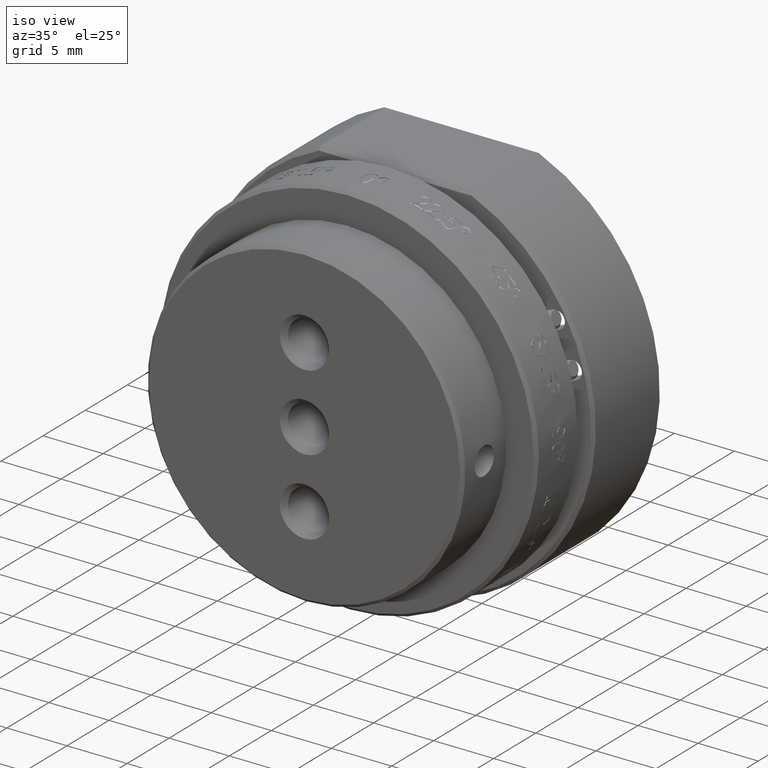
[diagram: clean part render]
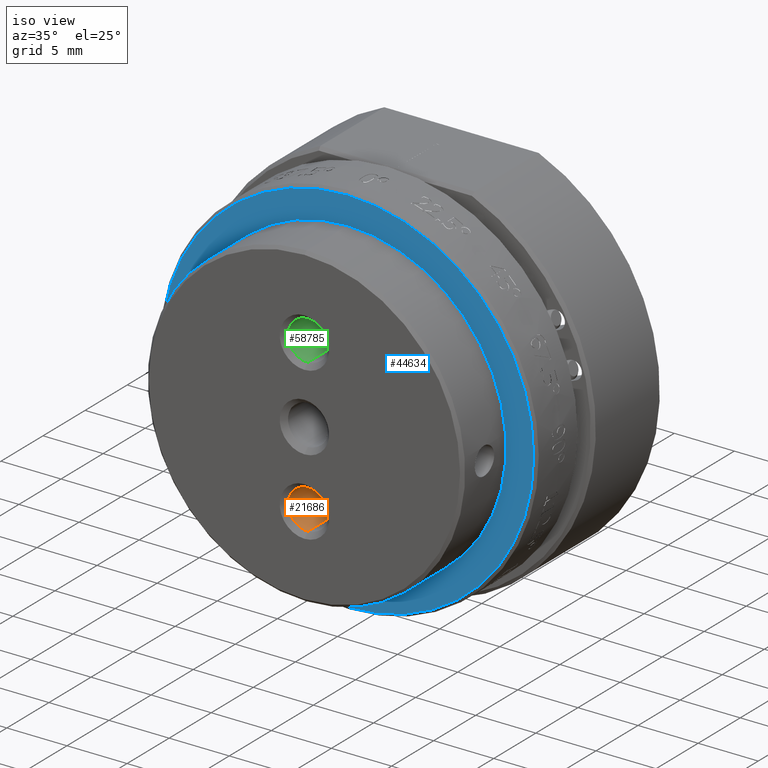
[diagram: same view with three faces highlighted in distinct colors, each labeled with its STEP entity id]
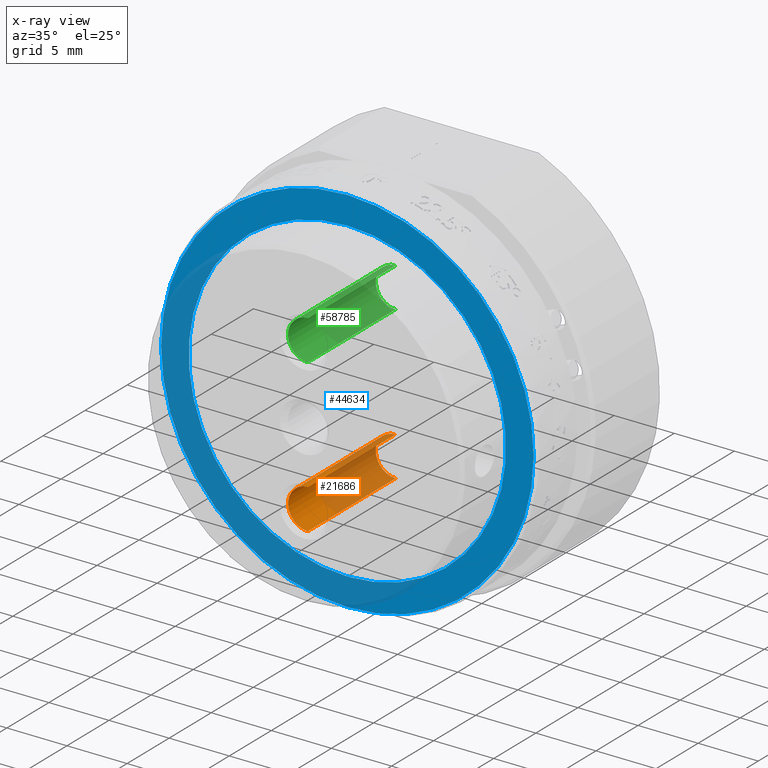
[diagram: x-ray of the same camera — body ghosted, the three highlighted faces saturated]
A machine part, iso view with three faces highlighted in distinct colors.
The next image is the same camera in x-ray (body ghosted, the three faces saturated) — at least one of them is partly hidden behind the body in this view.
Their STEP definitions:

[orange] entity #21686 — the highlighted cylindrical surface (edge-blend (fillet) strip) has radius 1.65 mm, axis along (-0, -1, -0).
#2853 = FACE_OUTER_BOUND ( 'NONE', #20907, .T. ) ;
#7263 = ORIENTED_EDGE ( 'NONE', *, *, #25511, .F. ) ;
#9129 = DIRECTION ( 'NONE',  ( 0.000000000000000000, 0.000000000000000000, -1.000000000000000000 ) ) ;
#13727 = CARTESIAN_POINT ( 'NONE',  ( -1.040834085586084257E-13, -18.51973527255162466, -8.000000000000133227 ) ) ;
#14503 = VERTEX_POINT ( 'NONE', #13727 ) ;
#16191 = VERTEX_POINT ( 'NONE', #44357 ) ;
#18759 = AXIS2_PLACEMENT_3D ( 'NONE', #25347, #53001, #9129 ) ;
#20906 = EDGE_CURVE ( 'NONE', #16191, #14503, #70556, .T. ) ;
#20907 = EDGE_LOOP ( 'NONE', ( #50894, #26636, #47929, #7263 ) ) ;
#21686 = ADVANCED_FACE ( 'NONE', ( #2853 ), #65519, .F. ) ;
#22680 = DIRECTION ( 'NONE',  ( -0.000000000000000000, -1.000000000000000000, -0.000000000000000000 ) ) ;
#23034 = LINE ( 'NONE', #56571, #58382 ) ;
#23981 = CIRCLE ( 'NONE', #66390, 1.649999999999997025 ) ;
#25347 = CARTESIAN_POINT ( 'NONE',  ( -1.040834085586084257E-13, -18.89473527255162466, -6.350000000000145306 ) ) ;
#25511 = EDGE_CURVE ( 'NONE', #35739, #14503, #61136, .T. ) ;
#26636 = ORIENTED_EDGE ( 'NONE', *, *, #43115, .T. ) ;
#27577 = CARTESIAN_POINT ( 'NONE',  ( -1.040834085586084257E-13, -18.51973527255162466, -6.350000000000145306 ) ) ;
#31902 = VECTOR ( 'NONE', #32070, 1000.000000000000000 ) ;
#32070 = DIRECTION ( 'NONE',  ( -0.000000000000000000, -1.000000000000000000, -0.000000000000000000 ) ) ;
#35739 = VERTEX_POINT ( 'NONE', #39692 ) ;
#36712 = EDGE_CURVE ( 'NONE', #56849, #35739, #23981, .T. ) ;
#37469 = DIRECTION ( 'NONE',  ( -0.000000000000000000, -1.000000000000000000, -0.000000000000000000 ) ) ;
#38559 = CARTESIAN_POINT ( 'NONE',  ( -1.040834085586084257E-13, -8.096735272551628171, -6.350000000000145306 ) ) ;
#39692 = CARTESIAN_POINT ( 'NONE',  ( -1.040834085586084257E-13, -8.096735272551628171, -8.000000000000142109 ) ) ;
#43115 = EDGE_CURVE ( 'NONE', #56849, #16191, #23034, .T. ) ;
#44357 = CARTESIAN_POINT ( 'NONE',  ( -1.038813418367491165E-13, -18.51973527255162466, -4.700000000000157385 ) ) ;
#45319 = DIRECTION ( 'NONE',  ( 0.000000000000000000, 0.000000000000000000, -1.000000000000000000 ) ) ;
#47929 = ORIENTED_EDGE ( 'NONE', *, *, #20906, .T. ) ;
#50430 = CARTESIAN_POINT ( 'NONE',  ( -1.038813418367491165E-13, -8.096735272551628171, -4.700000000000148503 ) ) ;
#50894 = ORIENTED_EDGE ( 'NONE', *, *, #36712, .F. ) ;
#53001 = DIRECTION ( 'NONE',  ( -0.000000000000000000, -1.000000000000000000, -0.000000000000000000 ) ) ;
#56571 = CARTESIAN_POINT ( 'NONE',  ( -1.038813418367491165E-13, -18.89473527255162466, -4.700000000000152944 ) ) ;
#56849 = VERTEX_POINT ( 'NONE', #50430 ) ;
#58382 = VECTOR ( 'NONE', #22680, 1000.000000000000000 ) ;
#60974 = DIRECTION ( 'NONE',  ( 0.000000000000000000, 0.000000000000000000, -1.000000000000000000 ) ) ;
#61123 = AXIS2_PLACEMENT_3D ( 'NONE', #27577, #67004, #45319 ) ;
#61136 = LINE ( 'NONE', #65945, #31902 ) ;
#65519 = CYLINDRICAL_SURFACE ( 'NONE', #18759, 1.649999999999993472 ) ;
#65945 = CARTESIAN_POINT ( 'NONE',  ( -1.040834085586084257E-13, -18.89473527255162466, -8.000000000000138556 ) ) ;
#66390 = AXIS2_PLACEMENT_3D ( 'NONE', #38559, #37469, #60974 ) ;
#67004 = DIRECTION ( 'NONE',  ( -0.000000000000000000, -1.000000000000000000, -0.000000000000000000 ) ) ;
#70556 = CIRCLE ( 'NONE', #61123, 1.649999999999988365 ) ;

[blue] entity #44634 — the highlighted planar face has unit normal (0, -1, 0).
#911 = ORIENTED_EDGE ( 'NONE', *, *, #26430, .T. ) ;
#1945 = DIRECTION ( 'NONE',  ( 0.000000000000000000, -1.000000000000000000, 0.000000000000000000 ) ) ;
#2774 = EDGE_LOOP ( 'NONE', ( #911, #47313 ) ) ;
#3295 = CIRCLE ( 'NONE', #31595, 15.49799999999999400 ) ;
#4431 = DIRECTION ( 'NONE',  ( 0.000000000000000000, 0.000000000000000000, -1.000000000000000000 ) ) ;
#5275 = EDGE_CURVE ( 'NONE', #69198, #10222, #43167, .T. ) ;
#6789 = VERTEX_POINT ( 'NONE', #44987 ) ;
#7461 = DIRECTION ( 'NONE',  ( 0.000000000000000000, 0.000000000000000000, -1.000000000000000000 ) ) ;
#7760 = EDGE_CURVE ( 'NONE', #10222, #69198, #52539, .T. ) ;
#8732 = CARTESIAN_POINT ( 'NONE',  ( -15.74800000000010591, -13.82473527255162438, -1.457167719820517959E-13 ) ) ;
#10222 = VERTEX_POINT ( 'NONE', #70626 ) ;
#11332 = AXIS2_PLACEMENT_3D ( 'NONE', #72256, #22128, #4431 ) ;
#11480 = EDGE_CURVE ( 'NONE', #48277, #6789, #3295, .T. ) ;
#11969 = ORIENTED_EDGE ( 'NONE', *, *, #5275, .F. ) ;
#12508 = AXIS2_PLACEMENT_3D ( 'NONE', #8732, #30518, #41611 ) ;
#12671 = CARTESIAN_POINT ( 'NONE',  ( -1.040834085586084257E-13, -13.82473527255162438, -1.457167719820517959E-13 ) ) ;
#13752 = DIRECTION ( 'NONE',  ( 0.000000000000000000, 0.000000000000000000, -1.000000000000000000 ) ) ;
#14435 = EDGE_LOOP ( 'NONE', ( #15918, #11969 ) ) ;
#15918 = ORIENTED_EDGE ( 'NONE', *, *, #7760, .F. ) ;
#19410 = CARTESIAN_POINT ( 'NONE',  ( -1.021701428643005142E-13, -13.82473527255162438, -15.49800000000013966 ) ) ;
#19469 = DIRECTION ( 'NONE',  ( 0.000000000000000000, 0.000000000000000000, -1.000000000000000000 ) ) ;
#22128 = DIRECTION ( 'NONE',  ( 0.000000000000000000, -1.000000000000000000, 0.000000000000000000 ) ) ;
#24428 = CARTESIAN_POINT ( 'NONE',  ( -1.040834085586084257E-13, -13.82473527255162438, -1.457167719820517959E-13 ) ) ;
#24616 = CARTESIAN_POINT ( 'NONE',  ( -1.040834085586084257E-13, -13.82473527255162438, -1.457167719820517959E-13 ) ) ;
#25322 = PLANE ( 'NONE',  #12508 ) ;
#25882 = CIRCLE ( 'NONE', #44788, 15.49799999999999400 ) ;
#26430 = EDGE_CURVE ( 'NONE', #6789, #48277, #25882, .T. ) ;
#30518 = DIRECTION ( 'NONE',  ( 0.000000000000000000, -1.000000000000000000, 0.000000000000000000 ) ) ;
#31595 = AXIS2_PLACEMENT_3D ( 'NONE', #24428, #41433, #7461 ) ;
#39906 = CARTESIAN_POINT ( 'NONE',  ( -1.056996974041231088E-13, -13.82473527255162438, -13.19800000000014428 ) ) ;
#41433 = DIRECTION ( 'NONE',  ( 0.000000000000000000, -1.000000000000000000, 0.000000000000000000 ) ) ;
#41611 = DIRECTION ( 'NONE',  ( 0.000000000000000000, 0.000000000000000000, 1.000000000000000000 ) ) ;
#43167 = CIRCLE ( 'NONE', #11332, 13.19799999999999862 ) ;
#44634 = ADVANCED_FACE ( 'NONE', ( #65125, #69574 ), #25322, .T. ) ;
#44788 = AXIS2_PLACEMENT_3D ( 'NONE', #12671, #1945, #13752 ) ;
#44987 = CARTESIAN_POINT ( 'NONE',  ( -1.040834085586084257E-13, -13.82473527255162438, 15.49799999999984834 ) ) ;
#47313 = ORIENTED_EDGE ( 'NONE', *, *, #11480, .T. ) ;
#48277 = VERTEX_POINT ( 'NONE', #19410 ) ;
#50188 = AXIS2_PLACEMENT_3D ( 'NONE', #24616, #58157, #19469 ) ;
#52539 = CIRCLE ( 'NONE', #50188, 13.19799999999999862 ) ;
#58157 = DIRECTION ( 'NONE',  ( 0.000000000000000000, -1.000000000000000000, 0.000000000000000000 ) ) ;
#65125 = FACE_OUTER_BOUND ( 'NONE', #2774, .T. ) ;
#69198 = VERTEX_POINT ( 'NONE', #39906 ) ;
#69574 = FACE_BOUND ( 'NONE', #14435, .T. ) ;
#70626 = CARTESIAN_POINT ( 'NONE',  ( -1.040834085586084257E-13, -13.82473527255162438, 13.19799999999985296 ) ) ;
#72256 = CARTESIAN_POINT ( 'NONE',  ( -1.040834085586084257E-13, -13.82473527255162438, -1.457167719820517959E-13 ) ) ;

[green] entity #58785 — the highlighted cylindrical surface (edge-blend (fillet) strip) has radius 1.65 mm, axis along (-0, -1, -0).
#879 = ORIENTED_EDGE ( 'NONE', *, *, #14101, .T. ) ;
#2079 = LINE ( 'NONE', #19062, #71939 ) ;
#4365 = VECTOR ( 'NONE', #10652, 1000.000000000000000 ) ;
#5113 = DIRECTION ( 'NONE',  ( -0.000000000000000000, -1.000000000000000000, -0.000000000000000000 ) ) ;
#6769 = EDGE_CURVE ( 'NONE', #11806, #52782, #26692, .T. ) ;
#6792 = EDGE_LOOP ( 'NONE', ( #66477, #71217, #879, #29151 ) ) ;
#10652 = DIRECTION ( 'NONE',  ( -0.000000000000000000, -1.000000000000000000, -0.000000000000000000 ) ) ;
#11554 = DIRECTION ( 'NONE',  ( 0.000000000000000000, 0.000000000000000000, -1.000000000000000000 ) ) ;
#11806 = VERTEX_POINT ( 'NONE', #46509 ) ;
#13362 = CARTESIAN_POINT ( 'NONE',  ( -1.040834085586084257E-13, -18.51973527255162466, 6.349999999999853983 ) ) ;
#14101 = EDGE_CURVE ( 'NONE', #29203, #63346, #17225, .T. ) ;
#16880 = EDGE_CURVE ( 'NONE', #11806, #29203, #45348, .T. ) ;
#17225 = CIRCLE ( 'NONE', #68972, 1.649999999999988365 ) ;
#19062 = CARTESIAN_POINT ( 'NONE',  ( -1.040834085586084257E-13, -18.89473527255162466, 4.699999999999861622 ) ) ;
#22352 = DIRECTION ( 'NONE',  ( -0.000000000000000000, -1.000000000000000000, -0.000000000000000000 ) ) ;
#26692 = CIRCLE ( 'NONE', #47941, 1.649999999999997025 ) ;
#29151 = ORIENTED_EDGE ( 'NONE', *, *, #34272, .F. ) ;
#29203 = VERTEX_POINT ( 'NONE', #64673 ) ;
#32066 = DIRECTION ( 'NONE',  ( 0.000000000000000000, 0.000000000000000000, -1.000000000000000000 ) ) ;
#34272 = EDGE_CURVE ( 'NONE', #52782, #63346, #2079, .T. ) ;
#34632 = CARTESIAN_POINT ( 'NONE',  ( -1.038813418367491165E-13, -18.89473527255162466, 7.999999999999847233 ) ) ;
#35721 = CARTESIAN_POINT ( 'NONE',  ( -1.040834085586084257E-13, -18.51973527255162466, 4.699999999999866063 ) ) ;
#36342 = CARTESIAN_POINT ( 'NONE',  ( -1.040834085586084257E-13, -8.096735272551628171, 4.699999999999857181 ) ) ;
#40338 = CYLINDRICAL_SURFACE ( 'NONE', #71001, 1.649999999999992584 ) ;
#45348 = LINE ( 'NONE', #34632, #4365 ) ;
#46509 = CARTESIAN_POINT ( 'NONE',  ( -1.038813418367491165E-13, -8.096735272551628171, 7.999999999999850786 ) ) ;
#46754 = DIRECTION ( 'NONE',  ( -0.000000000000000000, -1.000000000000000000, -0.000000000000000000 ) ) ;
#47941 = AXIS2_PLACEMENT_3D ( 'NONE', #71483, #5113, #32066 ) ;
#50640 = DIRECTION ( 'NONE',  ( -0.000000000000000000, -1.000000000000000000, -0.000000000000000000 ) ) ;
#52782 = VERTEX_POINT ( 'NONE', #36342 ) ;
#58785 = ADVANCED_FACE ( 'NONE', ( #68296 ), #40338, .F. ) ;
#63346 = VERTEX_POINT ( 'NONE', #35721 ) ;
#63480 = DIRECTION ( 'NONE',  ( 0.000000000000000000, 0.000000000000000000, -1.000000000000000000 ) ) ;
#64673 = CARTESIAN_POINT ( 'NONE',  ( -1.038813418367491165E-13, -18.51973527255162466, 7.999999999999841904 ) ) ;
#66477 = ORIENTED_EDGE ( 'NONE', *, *, #6769, .F. ) ;
#68296 = FACE_OUTER_BOUND ( 'NONE', #6792, .T. ) ;
#68652 = CARTESIAN_POINT ( 'NONE',  ( -1.040834085586084257E-13, -18.89473527255162466, 6.349999999999853983 ) ) ;
#68972 = AXIS2_PLACEMENT_3D ( 'NONE', #13362, #22352, #63480 ) ;
#71001 = AXIS2_PLACEMENT_3D ( 'NONE', #68652, #50640, #11554 ) ;
#71217 = ORIENTED_EDGE ( 'NONE', *, *, #16880, .T. ) ;
#71483 = CARTESIAN_POINT ( 'NONE',  ( -1.040834085586084257E-13, -8.096735272551628171, 6.349999999999853983 ) ) ;
#71939 = VECTOR ( 'NONE', #46754, 1000.000000000000000 ) ;